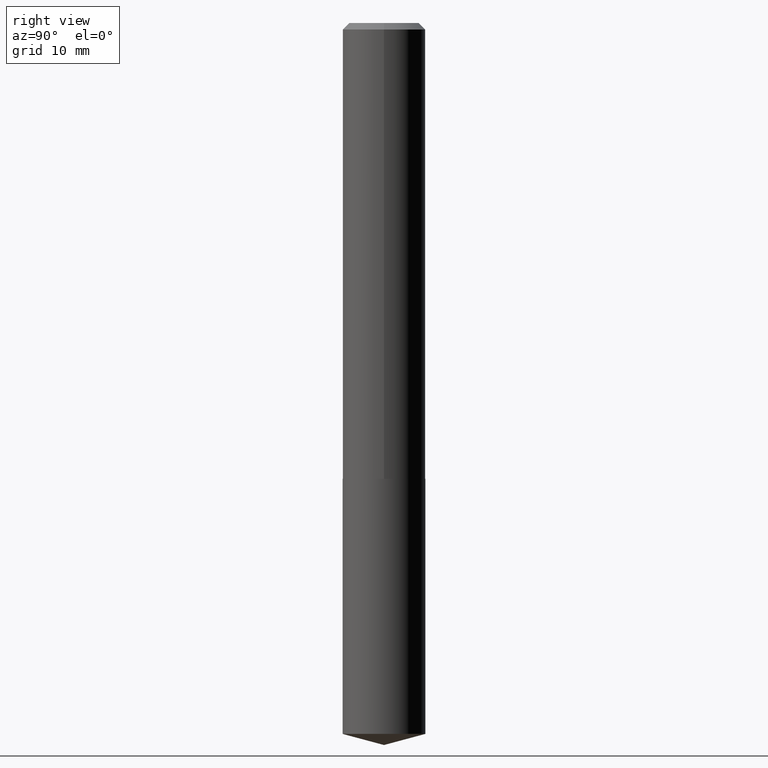
[diagram: clean part render]
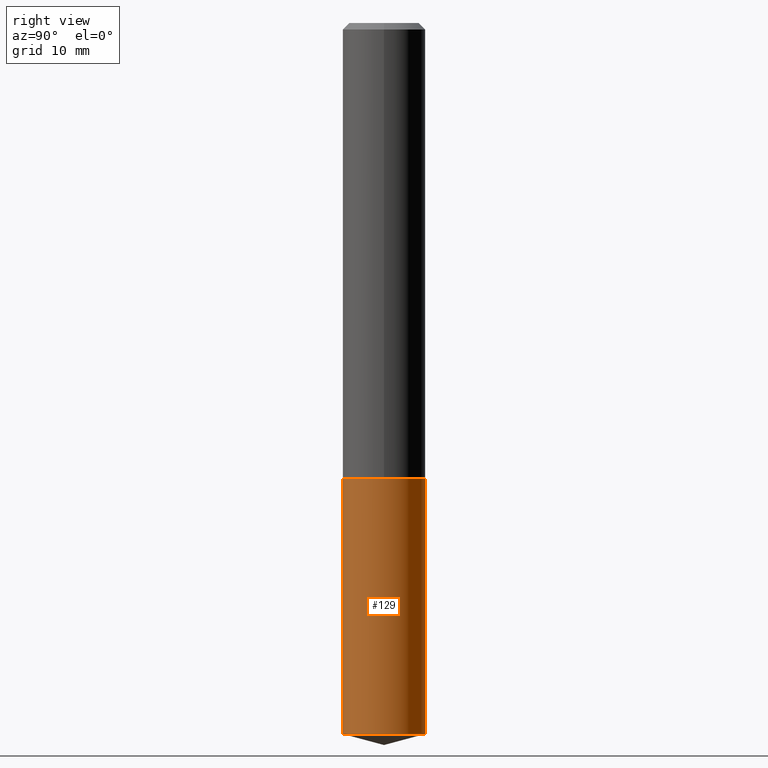
[diagram: same view with one face highlighted and labeled with its STEP entity id]
A machine part, right view. The second image highlights one B-rep face of the part: STEP entity #129.
In plain terms, the highlighted cylindrical surface (partial cylindrical patch) has radius 5.1003 mm, axis along (-0, 0, 1).
Its self-contained STEP definition (entity closure, byte-faithful):
#11 = VERTEX_POINT ( 'NONE', #53 ) ;
#38 = DIRECTION ( 'NONE',  ( -2.445182074429976905E-29, 3.491891955036292405E-15, 1.000000000000000000 ) ) ;
#45 = EDGE_CURVE ( 'NONE', #103, #11, #296, .T. ) ;
#53 = CARTESIAN_POINT ( 'NONE',  ( -1.402178905679348314E-15, -0.2008000000000077223, -2.212599999999998790 ) ) ;
#65 = FACE_OUTER_BOUND ( 'NONE', #150, .T. ) ;
#66 = ORIENTED_EDGE ( 'NONE', *, *, #373, .T. ) ;
#70 = CARTESIAN_POINT ( 'NONE',  ( 5.410844280565231711E-29, -7.725251610324342093E-15, -2.212599999999999678 ) ) ;
#75 = CARTESIAN_POINT ( 'NONE',  ( -1.402178905679348314E-15, -0.2008000000000077223, -2.212599999999998790 ) ) ;
#76 = DIRECTION ( 'NONE',  ( -2.445182074429976905E-29, 3.491891955036292405E-15, 1.000000000000000000 ) ) ;
#79 = DIRECTION ( 'NONE',  ( -2.445182074429977185E-29, 3.491891955036292405E-15, 1.000000000000000000 ) ) ;
#103 = VERTEX_POINT ( 'NONE', #183 ) ;
#108 = ORIENTED_EDGE ( 'NONE', *, *, #162, .F. ) ;
#109 = AXIS2_PLACEMENT_3D ( 'NONE', #319, #229, #346 ) ;
#117 = AXIS2_PLACEMENT_3D ( 'NONE', #306, #76, #356 ) ;
#118 = EDGE_CURVE ( 'NONE', #103, #339, #179, .T. ) ;
#129 = ADVANCED_FACE ( 'NONE', ( #65 ), #321, .T. ) ;
#130 = CARTESIAN_POINT ( 'NONE',  ( 1.426769813406365626E-15, 0.2007999999999922902, -2.212600000000000122 ) ) ;
#141 = ORIENTED_EDGE ( 'NONE', *, *, #118, .T. ) ;
#150 = EDGE_LOOP ( 'NONE', ( #141, #66, #108, #151 ) ) ;
#151 = ORIENTED_EDGE ( 'NONE', *, *, #45, .F. ) ;
#162 = EDGE_CURVE ( 'NONE', #11, #257, #165, .T. ) ;
#165 = CIRCLE ( 'NONE', #117, 0.2008000000000000063 ) ;
#179 = CIRCLE ( 'NONE', #109, 0.2008000000000000063 ) ;
#183 = CARTESIAN_POINT ( 'NONE',  ( -1.402178905679318140E-15, -0.2008000000000121354, -3.450095802159831138 ) ) ;
#199 = CARTESIAN_POINT ( 'NONE',  ( 1.426769813406335057E-15, 0.2007999999999922902, -2.212600000000000122 ) ) ;
#218 = VECTOR ( 'NONE', #79, 39.37007874015748143 ) ;
#226 = AXIS2_PLACEMENT_3D ( 'NONE', #70, #38, #294 ) ;
#229 = DIRECTION ( 'NONE',  ( -2.445182074429976905E-29, 3.491891955036292405E-15, 1.000000000000000000 ) ) ;
#257 = VERTEX_POINT ( 'NONE', #130 ) ;
#283 = DIRECTION ( 'NONE',  ( -2.445182074429977185E-29, 3.491891955036292405E-15, 1.000000000000000000 ) ) ;
#286 = LINE ( 'NONE', #199, #369 ) ;
#294 = DIRECTION ( 'NONE',  ( -6.982962677686266711E-15, -1.000000000000000000, 4.081446205673699815E-15 ) ) ;
#296 = LINE ( 'NONE', #75, #218 ) ;
#306 = CARTESIAN_POINT ( 'NONE',  ( 5.410844280565231711E-29, -7.725251610324342093E-15, -2.212599999999999678 ) ) ;
#319 = CARTESIAN_POINT ( 'NONE',  ( 8.436746833188797904E-29, -1.204645324627744205E-14, -3.450095802159831582 ) ) ;
#321 = CYLINDRICAL_SURFACE ( 'NONE', #226, 0.2008000000000000063 ) ;
#338 = CARTESIAN_POINT ( 'NONE',  ( 1.426769813406365626E-15, 0.2007999999999879881, -3.450095802159832026 ) ) ;
#339 = VERTEX_POINT ( 'NONE', #338 ) ;
#346 = DIRECTION ( 'NONE',  ( -6.982962677686266711E-15, -1.000000000000000000, 2.720964137115799877E-15 ) ) ;
#356 = DIRECTION ( 'NONE',  ( -6.982962677686266711E-15, -1.000000000000000000, 4.081446205673699815E-15 ) ) ;
#369 = VECTOR ( 'NONE', #283, 39.37007874015748143 ) ;
#373 = EDGE_CURVE ( 'NONE', #339, #257, #286, .T. ) ;